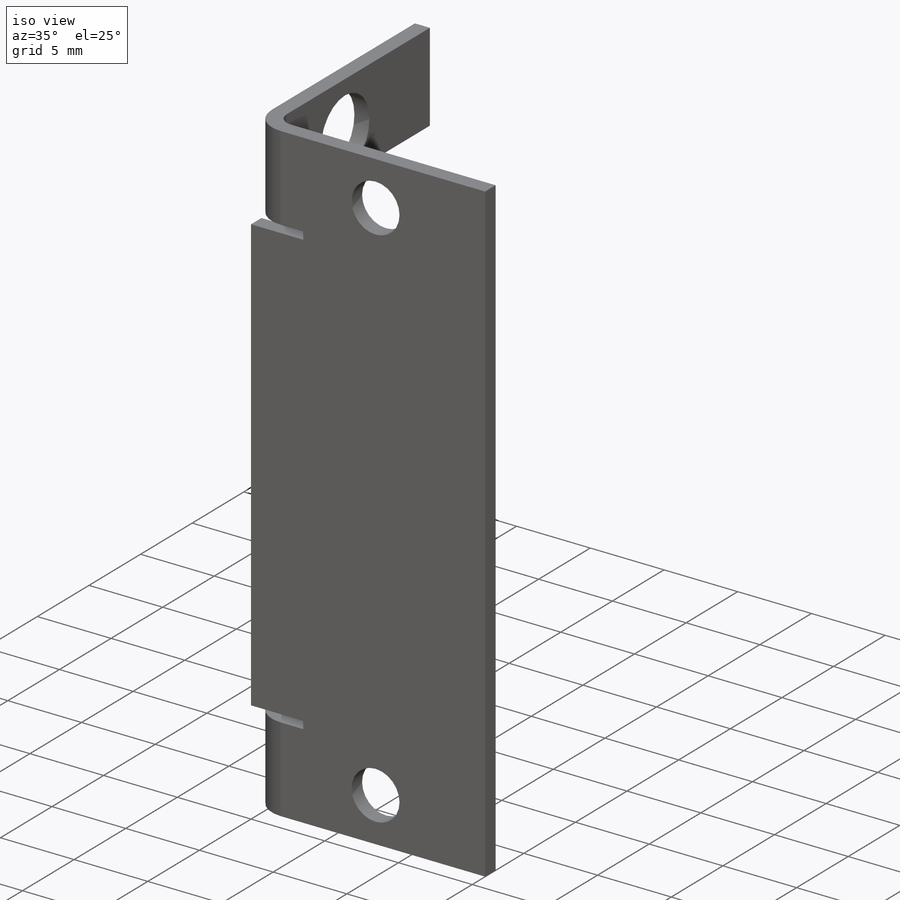
[diagram: iso view]
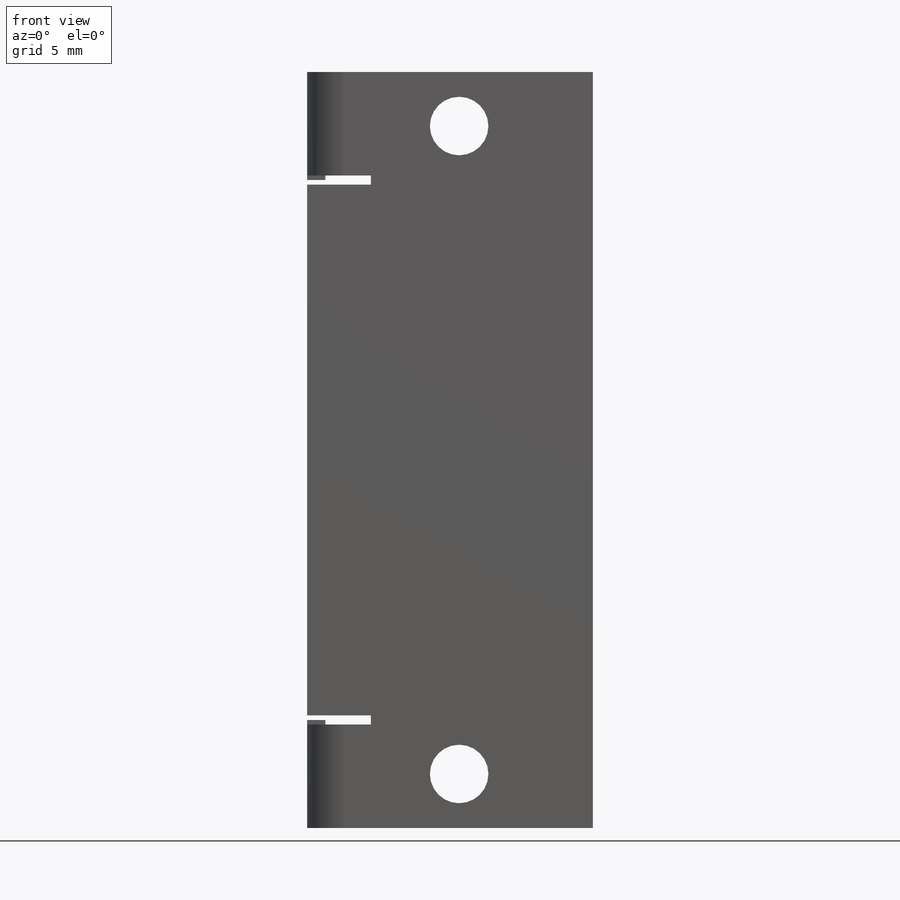
[diagram: front view]
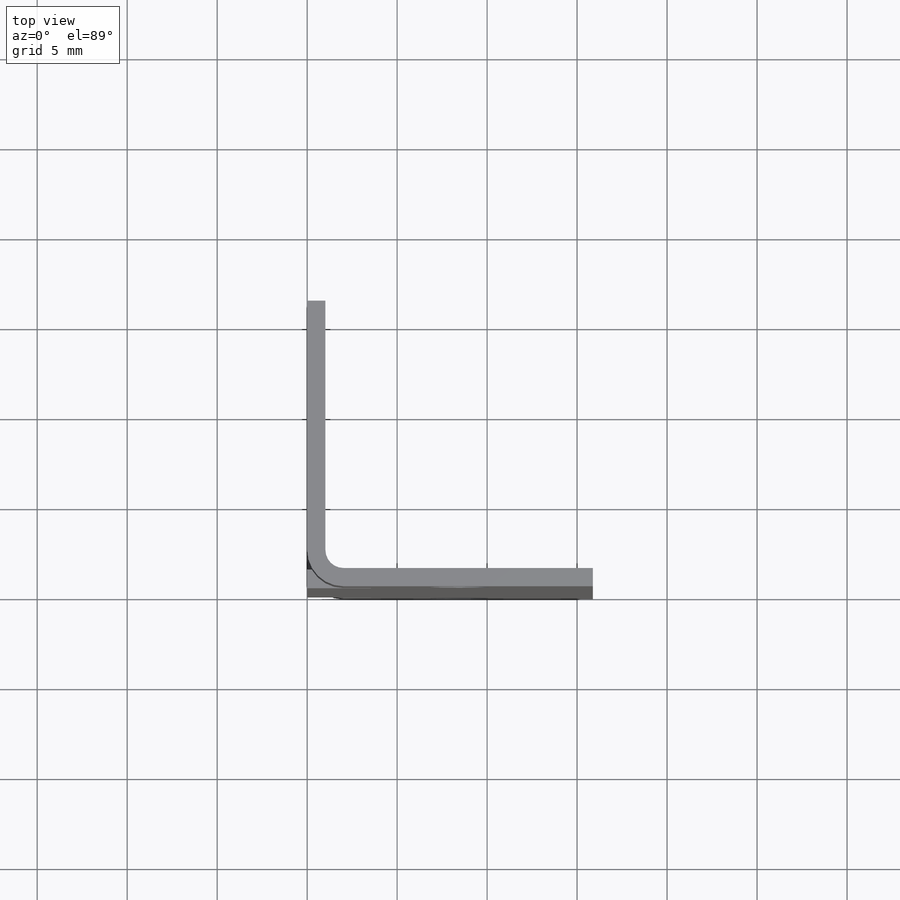
[diagram: top view]
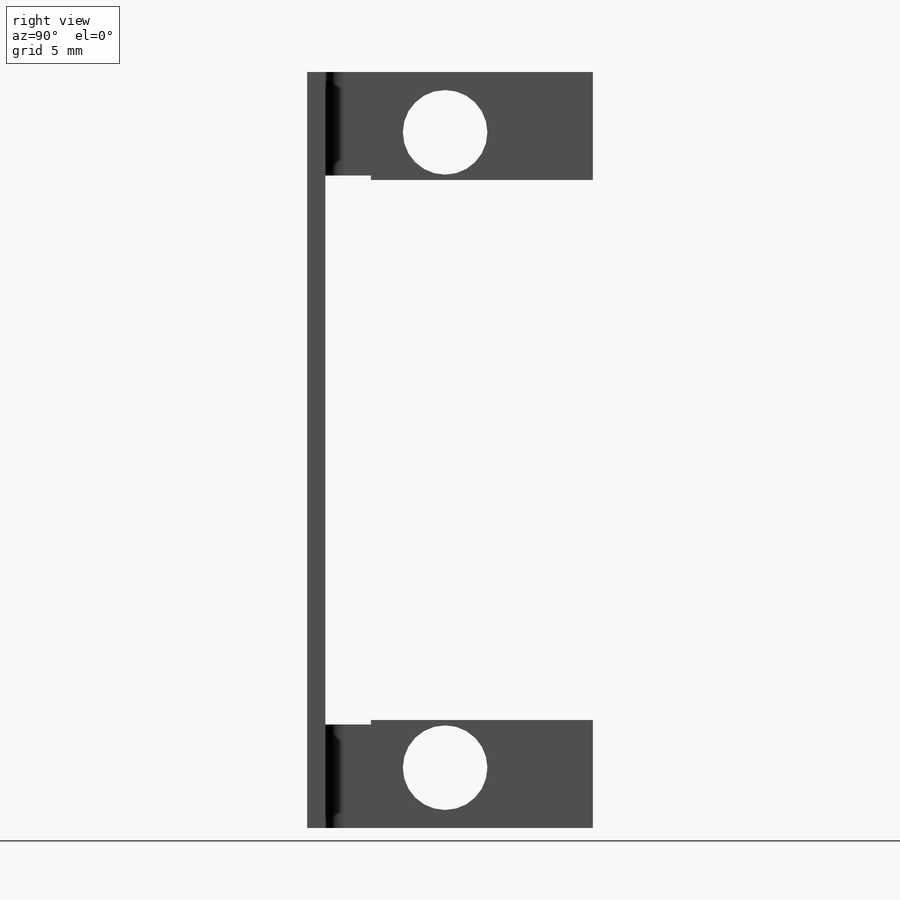
[diagram: right view]
SOLIDWORKS PART (.sldprt)
format: sldprt  version: not decoded by parser v0  size: 280,064 bytes
history: native  units: mm
features: sketch x8, cut_extrude x3, material x1, extrude x1, sheet_metal_op x1 + 2 further entries (+13 scaffold rows collapsed; 1 parser-record rows omitted)
feature tree (30):
  scaffold x13  (default folders/planes/origin — collapsed)
  material  "Material <not specified>"
  sketch  "Sketch1"  dims[D1=15.875mm D2=15.875mm D3=1.016mm]
  extrude  "Boss-Extrude1"  Depth=42mm
  sketch  "Sketch4"  dims[D1=30.0mm]
  cut_extrude  "Cut-Extrude2"  Depth=6.35mm
  sketch  "Sketch6"  dims[D1=4.7mm D2=6.65mm D3=3.35mm]
  cut_extrude  "Cut-Extrude3"  Depth=6.35mm
  sketch  "Sketch7"  dims[D1=3.25mm]
  cut_extrude  "Cut-Extrude4"  Depth=10mm SharpBend2=0
  sketch  "Bend-Lines1"
  sketch  "Bounding-Box1"
  sheet_metal_op  "Sheet-Metal6"
  "Flat-Pattern6"
  sketch  "Bend-Lines2"
  sketch  "Bounding-Box2"
  "Flatten-<SharpBend2>1"
  parser-record x1  (decoder bookkeeping rows leaked as tree rows — omitted from the tree; the rows remain in map.json)
decode coverage: 8 of 13 modeling features carry decoded parameters; 2 rows unclassified (native names shown)
note: suppression state not decoded; provenance and decode notes live in map.json
